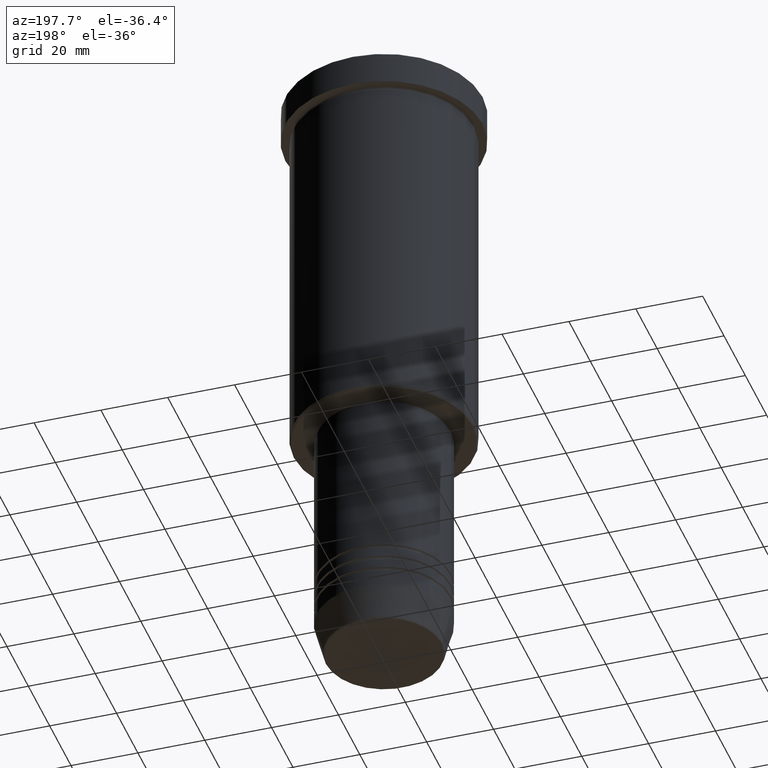
[diagram: clean part render]
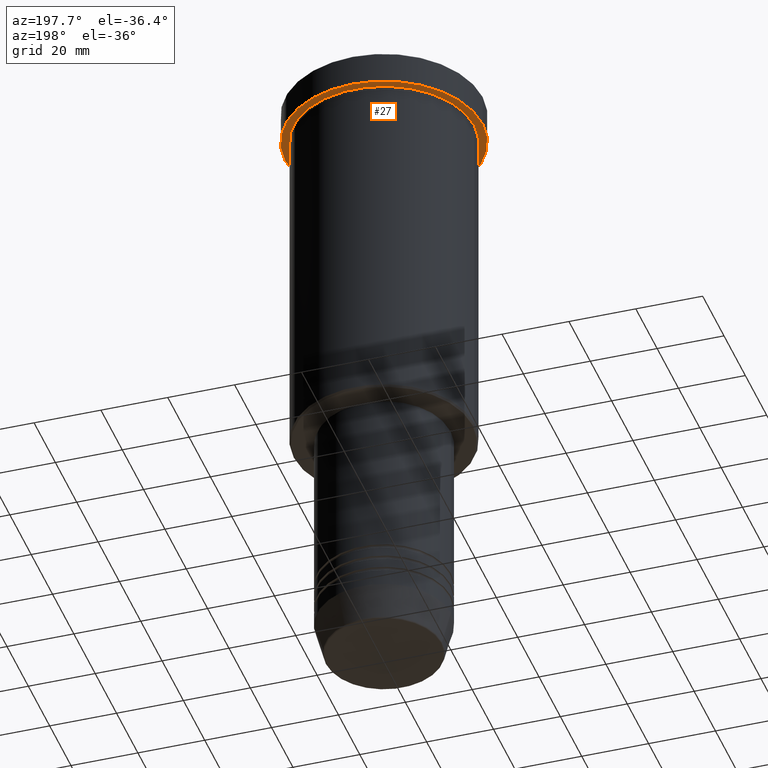
[diagram: same view with one face highlighted and labeled with its STEP entity id]
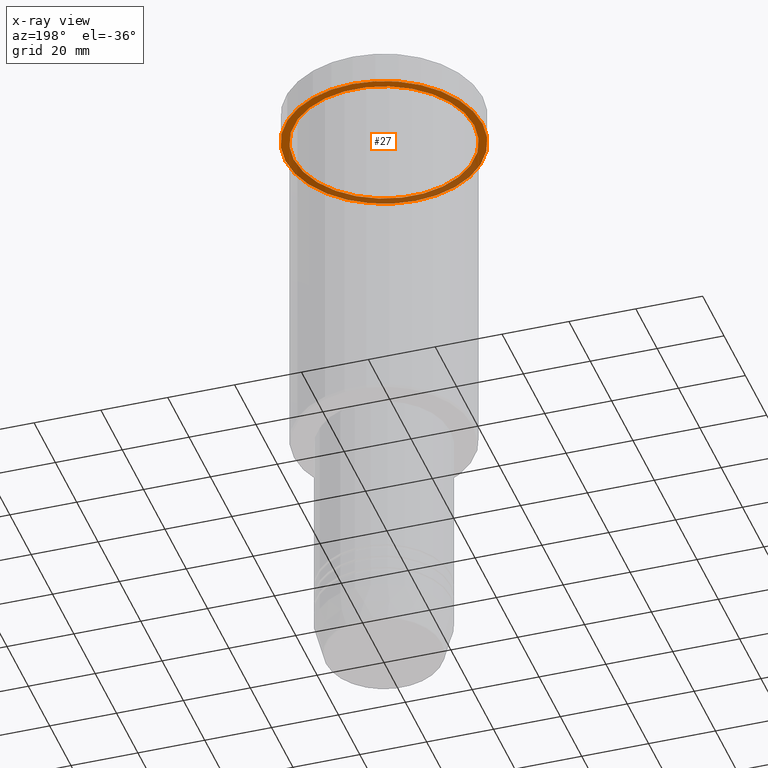
[diagram: x-ray of the same camera — body ghosted, the highlighted face saturated]
A machine part, auxiliary view. The second image highlights one B-rep face of the part: STEP entity #27.
The next image is the same camera in x-ray: the body ghosted, the highlighted face saturated — about 38% of this face is hidden behind the body in this view.
In plain terms, the highlighted planar face has unit normal (0, 0, -1).
Its self-contained STEP definition (entity closure, byte-faithful):
#27 = ADVANCED_FACE ( 'NONE', ( #581, #1144 ), #332, .T. ) ;
#121 = AXIS2_PLACEMENT_3D ( 'NONE', #1111, #624, #281 ) ;
#198 = AXIS2_PLACEMENT_3D ( 'NONE', #1174, #704, #1081 ) ;
#203 = DIRECTION ( 'NONE',  ( -0.000000000000000000, -0.000000000000000000, 1.000000000000000000 ) ) ;
#222 = EDGE_CURVE ( 'NONE', #1076, #573, #359, .T. ) ;
#281 = DIRECTION ( 'NONE',  ( 1.000000000000000000, 0.000000000000000000, 0.000000000000000000 ) ) ;
#314 = DIRECTION ( 'NONE',  ( -1.000000000000000000, 0.000000000000000000, -0.000000000000000000 ) ) ;
#332 = PLANE ( 'NONE',  #1053 ) ;
#359 = CIRCLE ( 'NONE', #486, 27.00000000000000355 ) ;
#402 = DIRECTION ( 'NONE',  ( 0.000000000000000000, 0.000000000000000000, -1.000000000000000000 ) ) ;
#431 = EDGE_CURVE ( 'NONE', #718, #868, #1149, .T. ) ;
#448 = EDGE_LOOP ( 'NONE', ( #1048, #822 ) ) ;
#461 = DIRECTION ( 'NONE',  ( -1.000000000000000000, 0.000000000000000000, 0.000000000000000000 ) ) ;
#470 = CARTESIAN_POINT ( 'NONE',  ( 29.50000000000000000, 0.000000000000000000, -9.999999999999992895 ) ) ;
#486 = AXIS2_PLACEMENT_3D ( 'NONE', #648, #203, #461 ) ;
#503 = CARTESIAN_POINT ( 'NONE',  ( 0.000000000000000000, 0.000000000000000000, -9.999999999999992895 ) ) ;
#562 = CARTESIAN_POINT ( 'NONE',  ( -27.00000000000000355, 0.000000000000000000, -9.999999999999992895 ) ) ;
#573 = VERTEX_POINT ( 'NONE', #626 ) ;
#576 = EDGE_CURVE ( 'NONE', #573, #1076, #842, .T. ) ;
#581 = FACE_BOUND ( 'NONE', #448, .T. ) ;
#624 = DIRECTION ( 'NONE',  ( -0.000000000000000000, -0.000000000000000000, 1.000000000000000000 ) ) ;
#626 = CARTESIAN_POINT ( 'NONE',  ( 27.00000000000000355, 3.306546357697854128E-15, -9.999999999999992895 ) ) ;
#648 = CARTESIAN_POINT ( 'NONE',  ( 0.000000000000000000, 0.000000000000000000, -9.999999999999992895 ) ) ;
#674 = CARTESIAN_POINT ( 'NONE',  ( 0.000000000000000000, 29.50000000000000000, -9.999999999999992895 ) ) ;
#697 = EDGE_LOOP ( 'NONE', ( #1175, #758 ) ) ;
#704 = DIRECTION ( 'NONE',  ( -0.000000000000000000, -0.000000000000000000, 1.000000000000000000 ) ) ;
#718 = VERTEX_POINT ( 'NONE', #470 ) ;
#721 = AXIS2_PLACEMENT_3D ( 'NONE', #503, #970, #1039 ) ;
#758 = ORIENTED_EDGE ( 'NONE', *, *, #961, .F. ) ;
#822 = ORIENTED_EDGE ( 'NONE', *, *, #576, .T. ) ;
#842 = CIRCLE ( 'NONE', #198, 27.00000000000000355 ) ;
#868 = VERTEX_POINT ( 'NONE', #965 ) ;
#961 = EDGE_CURVE ( 'NONE', #868, #718, #1065, .T. ) ;
#965 = CARTESIAN_POINT ( 'NONE',  ( -29.50000000000000000, 3.612708057484691604E-15, -9.999999999999992895 ) ) ;
#970 = DIRECTION ( 'NONE',  ( -0.000000000000000000, -0.000000000000000000, 1.000000000000000000 ) ) ;
#1039 = DIRECTION ( 'NONE',  ( 1.000000000000000000, 0.000000000000000000, 0.000000000000000000 ) ) ;
#1048 = ORIENTED_EDGE ( 'NONE', *, *, #222, .T. ) ;
#1053 = AXIS2_PLACEMENT_3D ( 'NONE', #674, #402, #314 ) ;
#1065 = CIRCLE ( 'NONE', #121, 29.50000000000000000 ) ;
#1076 = VERTEX_POINT ( 'NONE', #562 ) ;
#1081 = DIRECTION ( 'NONE',  ( -1.000000000000000000, 0.000000000000000000, 0.000000000000000000 ) ) ;
#1111 = CARTESIAN_POINT ( 'NONE',  ( 0.000000000000000000, 0.000000000000000000, -9.999999999999992895 ) ) ;
#1144 = FACE_OUTER_BOUND ( 'NONE', #697, .T. ) ;
#1149 = CIRCLE ( 'NONE', #721, 29.50000000000000000 ) ;
#1174 = CARTESIAN_POINT ( 'NONE',  ( 0.000000000000000000, 0.000000000000000000, -9.999999999999992895 ) ) ;
#1175 = ORIENTED_EDGE ( 'NONE', *, *, #431, .F. ) ;